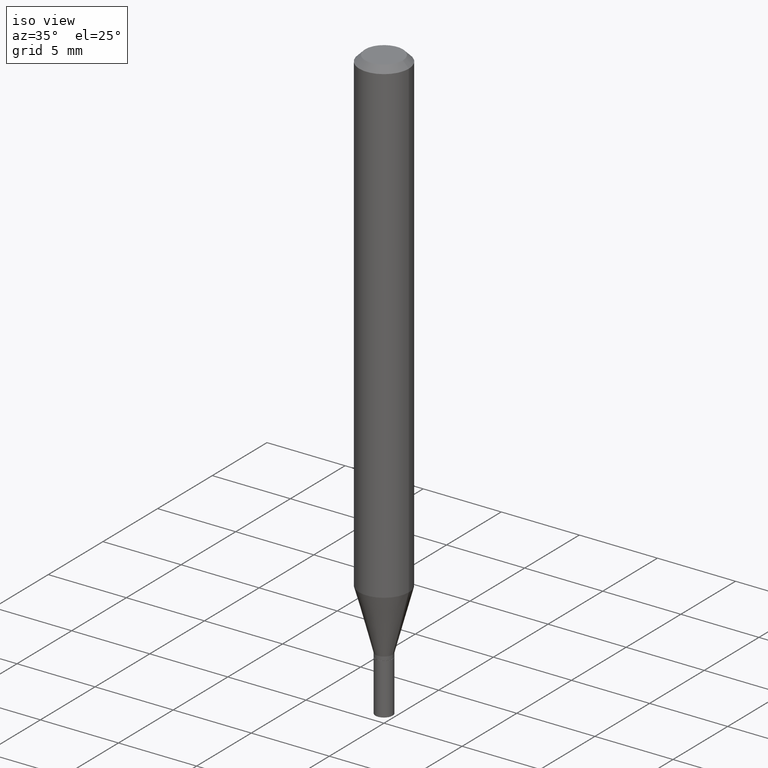
[diagram: clean part render]
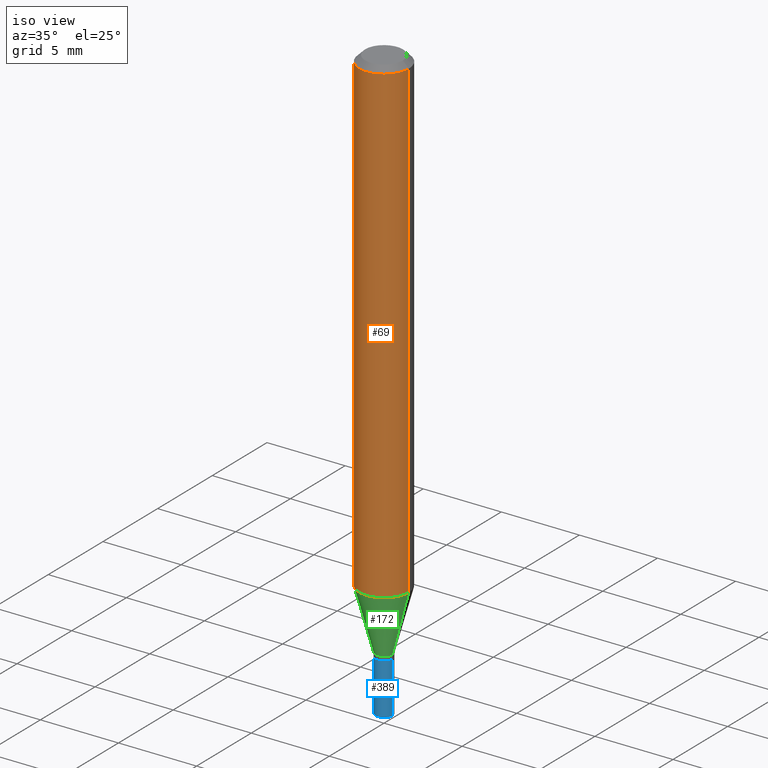
[diagram: same view with three faces highlighted in distinct colors, each labeled with its STEP entity id]
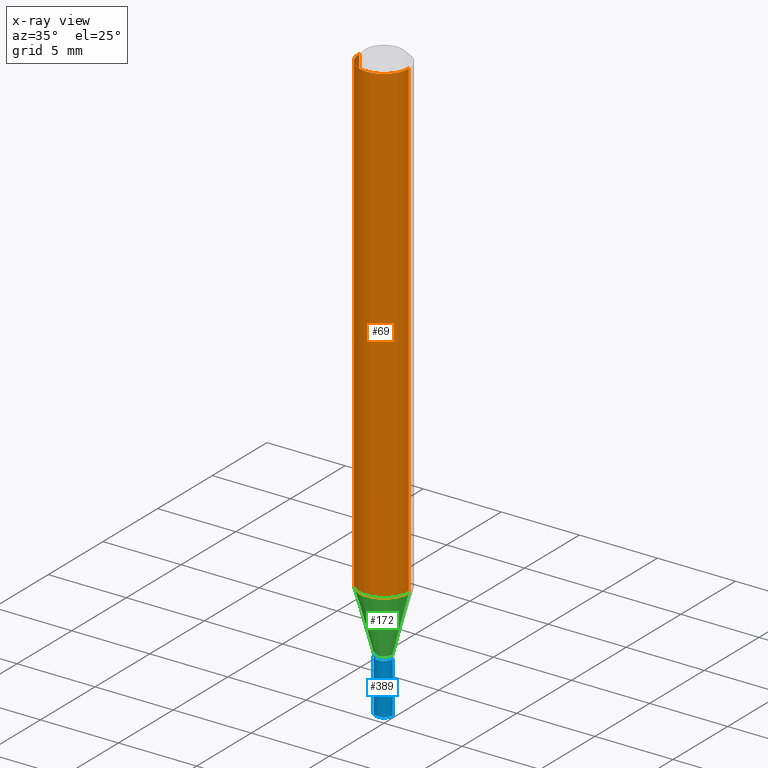
[diagram: x-ray of the same camera — body ghosted, the three highlighted faces saturated]
A machine part, iso view with three faces highlighted in distinct colors.
The next image is the same camera in x-ray (body ghosted, the three faces saturated) — at least one of them is partly hidden behind the body in this view.
Their STEP definitions:

[orange] entity #69 — the highlighted cylindrical surface (edge-blend (fillet) strip) has radius 1.5875 mm, axis along (-0, 0, 1).
#10 = ORIENTED_EDGE ( 'NONE', *, *, #109, .T. ) ;
#11 = CARTESIAN_POINT ( 'NONE',  ( 2.954091878064654281E-29, -4.217660286405631739E-15, -1.207985916889676270 ) ) ;
#23 = CARTESIAN_POINT ( 'NONE',  ( 0.06249999999999999306, -4.654095453761023408E-15, -1.207985916889676270 ) ) ;
#27 = VECTOR ( 'NONE', #318, 39.37007874015748143 ) ;
#40 = EDGE_LOOP ( 'NONE', ( #430, #10, #53, #263 ) ) ;
#53 = ORIENTED_EDGE ( 'NONE', *, *, #350, .T. ) ;
#58 = LINE ( 'NONE', #182, #27 ) ;
#66 = AXIS2_PLACEMENT_3D ( 'NONE', #278, #250, #417 ) ;
#69 = ADVANCED_FACE ( 'NONE', ( #422 ), #351, .T. ) ;
#74 = VERTEX_POINT ( 'NONE', #355 ) ;
#83 = VERTEX_POINT ( 'NONE', #147 ) ;
#93 = EDGE_CURVE ( 'NONE', #83, #74, #404, .T. ) ;
#109 = EDGE_CURVE ( 'NONE', #275, #323, #338, .T. ) ;
#111 = AXIS2_PLACEMENT_3D ( 'NONE', #452, #244, #210 ) ;
#146 = LINE ( 'NONE', #219, #435 ) ;
#147 = CARTESIAN_POINT ( 'NONE',  ( -0.06250000000000000000, -1.690927043394076990E-15, -0.01499999999999999944 ) ) ;
#161 = CARTESIAN_POINT ( 'NONE',  ( -0.06249999999999999306, -3.773571076555568334E-15, -1.207985916889676270 ) ) ;
#176 = EDGE_CURVE ( 'NONE', #275, #83, #58, .T. ) ;
#182 = CARTESIAN_POINT ( 'NONE',  ( -0.06250000000000000000, 4.440892098500626162E-16, -3.074334431409316114E-30 ) ) ;
#210 = DIRECTION ( 'NONE',  ( 1.000000000000000000, -6.982962677686266711E-15, 4.876176775795935793E-29 ) ) ;
#219 = CARTESIAN_POINT ( 'NONE',  ( 0.06250000000000000000, -4.364351673553916694E-16, 3.047610484872459871E-30 ) ) ;
#244 = DIRECTION ( 'NONE',  ( -2.445468806185136597E-29, 3.491481338843145583E-15, 1.000000000000000000 ) ) ;
#250 = DIRECTION ( 'NONE',  ( -2.445468806185136597E-29, 3.491481338843145583E-15, 1.000000000000000000 ) ) ;
#263 = ORIENTED_EDGE ( 'NONE', *, *, #93, .F. ) ;
#275 = VERTEX_POINT ( 'NONE', #161 ) ;
#278 = CARTESIAN_POINT ( 'NONE',  ( 3.668203209277705088E-31, -5.237222008264718399E-17, -0.01499999999999999944 ) ) ;
#318 = DIRECTION ( 'NONE',  ( -2.445468806185136877E-29, 3.491481338843145188E-15, 1.000000000000000000 ) ) ;
#323 = VERTEX_POINT ( 'NONE', #23 ) ;
#338 = CIRCLE ( 'NONE', #344, 0.06250000000000000000 ) ;
#340 = DIRECTION ( 'NONE',  ( 1.000000000000000000, -6.982962677686262766E-15, 0.000000000000000000 ) ) ;
#344 = AXIS2_PLACEMENT_3D ( 'NONE', #11, #407, #340 ) ;
#350 = EDGE_CURVE ( 'NONE', #323, #74, #146, .T. ) ;
#351 = CYLINDRICAL_SURFACE ( 'NONE', #111, 0.06250000000000000000 ) ;
#355 = CARTESIAN_POINT ( 'NONE',  ( 0.06250000000000000000, -4.888073874380388472E-16, -0.01499999999999999944 ) ) ;
#404 = CIRCLE ( 'NONE', #66, 0.06250000000000000000 ) ;
#407 = DIRECTION ( 'NONE',  ( -2.445468806185136597E-29, 3.491481338843145583E-15, 1.000000000000000000 ) ) ;
#417 = DIRECTION ( 'NONE',  ( 1.000000000000000000, -6.982962677686266711E-15, 0.000000000000000000 ) ) ;
#422 = FACE_OUTER_BOUND ( 'NONE', #40, .T. ) ;
#430 = ORIENTED_EDGE ( 'NONE', *, *, #176, .F. ) ;
#435 = VECTOR ( 'NONE', #464, 39.37007874015748143 ) ;
#452 = CARTESIAN_POINT ( 'NONE',  ( 0.000000000000000000, 0.000000000000000000, 0.000000000000000000 ) ) ;
#464 = DIRECTION ( 'NONE',  ( -2.445468806185136877E-29, 3.491481338843145188E-15, 1.000000000000000000 ) ) ;

[blue] entity #389 — the highlighted cylindrical surface (edge-blend (fillet) strip) has radius 0.5461 mm, axis along (-0, 0, 1).
#3 = FACE_OUTER_BOUND ( 'NONE', #194, .T. ) ;
#28 = VECTOR ( 'NONE', #306, 39.37007874015748143 ) ;
#29 = CARTESIAN_POINT ( 'NONE',  ( 0.02150000000000000175, -5.387355705834973006E-15, -1.500000000000000222 ) ) ;
#33 = ORIENTED_EDGE ( 'NONE', *, *, #46, .T. ) ;
#46 = EDGE_CURVE ( 'NONE', #75, #450, #421, .T. ) ;
#50 = LINE ( 'NONE', #242, #28 ) ;
#51 = VECTOR ( 'NONE', #386, 39.37007874015748143 ) ;
#56 = DIRECTION ( 'NONE',  ( -2.445468806185136597E-29, 3.491481338843145583E-15, 1.000000000000000000 ) ) ;
#75 = VERTEX_POINT ( 'NONE', #29 ) ;
#79 = CARTESIAN_POINT ( 'NONE',  ( 3.352737733279822651E-29, -4.786820915553953690E-15, -1.371000000000000218 ) ) ;
#124 = DIRECTION ( 'NONE',  ( 1.000000000000000000, -6.982962677686265922E-15, 4.876176775795935232E-29 ) ) ;
#134 = AXIS2_PLACEMENT_3D ( 'NONE', #79, #292, #436 ) ;
#142 = CIRCLE ( 'NONE', #396, 0.02150000000000000175 ) ;
#193 = CARTESIAN_POINT ( 'NONE',  ( -0.02150000000000000175, -4.859254773720913469E-15, -1.500000000000000222 ) ) ;
#194 = EDGE_LOOP ( 'NONE', ( #385, #294, #33, #455 ) ) ;
#205 = CARTESIAN_POINT ( 'NONE',  ( 0.02150000000000000175, -1.501336975702547303E-16, 1.048378006796126202E-30 ) ) ;
#222 = CARTESIAN_POINT ( 'NONE',  ( -0.02150000000000000175, -4.859254773720913469E-15, -1.371000000000000218 ) ) ;
#242 = CARTESIAN_POINT ( 'NONE',  ( -0.02150000000000000175, 1.527666881884215524E-16, -1.057571044404804700E-30 ) ) ;
#252 = AXIS2_PLACEMENT_3D ( 'NONE', #257, #405, #124 ) ;
#257 = CARTESIAN_POINT ( 'NONE',  ( 0.000000000000000000, 0.000000000000000000, 0.000000000000000000 ) ) ;
#280 = CIRCLE ( 'NONE', #134, 0.02150000000000000175 ) ;
#287 = CYLINDRICAL_SURFACE ( 'NONE', #252, 0.02150000000000000175 ) ;
#292 = DIRECTION ( 'NONE',  ( -2.445468806185136597E-29, 3.491481338843145583E-15, 1.000000000000000000 ) ) ;
#294 = ORIENTED_EDGE ( 'NONE', *, *, #412, .T. ) ;
#306 = DIRECTION ( 'NONE',  ( -2.445468806185136877E-29, 3.491481338843145188E-15, 1.000000000000000000 ) ) ;
#309 = CARTESIAN_POINT ( 'NONE',  ( 0.02150000000000000175, -4.936954613124208519E-15, -1.371000000000000218 ) ) ;
#322 = EDGE_CURVE ( 'NONE', #382, #365, #50, .T. ) ;
#354 = EDGE_CURVE ( 'NONE', #365, #450, #280, .T. ) ;
#365 = VERTEX_POINT ( 'NONE', #222 ) ;
#377 = CARTESIAN_POINT ( 'NONE',  ( 3.668203209277704895E-29, -5.237222008264718177E-15, -1.500000000000000222 ) ) ;
#382 = VERTEX_POINT ( 'NONE', #193 ) ;
#385 = ORIENTED_EDGE ( 'NONE', *, *, #322, .F. ) ;
#386 = DIRECTION ( 'NONE',  ( -2.445468806185136877E-29, 3.491481338843145188E-15, 1.000000000000000000 ) ) ;
#389 = ADVANCED_FACE ( 'NONE', ( #3 ), #287, .T. ) ;
#396 = AXIS2_PLACEMENT_3D ( 'NONE', #377, #56, #414 ) ;
#405 = DIRECTION ( 'NONE',  ( -2.445468806185136597E-29, 3.491481338843145583E-15, 1.000000000000000000 ) ) ;
#412 = EDGE_CURVE ( 'NONE', #382, #75, #142, .T. ) ;
#414 = DIRECTION ( 'NONE',  ( 1.000000000000000000, -6.982962677686265133E-15, 0.000000000000000000 ) ) ;
#421 = LINE ( 'NONE', #205, #51 ) ;
#436 = DIRECTION ( 'NONE',  ( 1.000000000000000000, -6.982962677686265133E-15, 0.000000000000000000 ) ) ;
#450 = VERTEX_POINT ( 'NONE', #309 ) ;
#455 = ORIENTED_EDGE ( 'NONE', *, *, #354, .F. ) ;

[green] entity #172 — the highlighted conical surface has half-angle 15 deg.
#11 = CARTESIAN_POINT ( 'NONE',  ( 2.954091878064654281E-29, -4.217660286405631739E-15, -1.207985916889676270 ) ) ;
#21 = LINE ( 'NONE', #295, #141 ) ;
#23 = CARTESIAN_POINT ( 'NONE',  ( 0.06249999999999999306, -4.654095453761023408E-15, -1.207985916889676270 ) ) ;
#49 = VERTEX_POINT ( 'NONE', #427 ) ;
#63 = FACE_OUTER_BOUND ( 'NONE', #248, .T. ) ;
#67 = ORIENTED_EDGE ( 'NONE', *, *, #104, .T. ) ;
#98 = VECTOR ( 'NONE', #100, 39.37007874015747433 ) ;
#100 = DIRECTION ( 'NONE',  ( -0.2588190451025214611, 5.211531920934551042E-15, 0.9659258262890682012 ) ) ;
#104 = EDGE_CURVE ( 'NONE', #282, #49, #370, .T. ) ;
#109 = EDGE_CURVE ( 'NONE', #275, #323, #338, .T. ) ;
#140 = DIRECTION ( 'NONE',  ( 0.2588190451025214611, 1.565188264969621573E-15, 0.9659258262890682012 ) ) ;
#141 = VECTOR ( 'NONE', #140, 39.37007874015747433 ) ;
#161 = CARTESIAN_POINT ( 'NONE',  ( -0.06249999999999999306, -3.773571076555568334E-15, -1.207985916889676270 ) ) ;
#172 = ADVANCED_FACE ( 'NONE', ( #63 ), #374, .T. ) ;
#196 = AXIS2_PLACEMENT_3D ( 'NONE', #237, #384, #335 ) ;
#237 = CARTESIAN_POINT ( 'NONE',  ( 3.328283045217970545E-29, -4.751906102165520463E-15, -1.360999999999999988 ) ) ;
#248 = EDGE_LOOP ( 'NONE', ( #326, #67, #272, #461 ) ) ;
#271 = CARTESIAN_POINT ( 'NONE',  ( -0.02149999999999992889, -4.599139413977099971E-15, -1.360999999999999988 ) ) ;
#272 = ORIENTED_EDGE ( 'NONE', *, *, #290, .T. ) ;
#273 = LINE ( 'NONE', #271, #98 ) ;
#275 = VERTEX_POINT ( 'NONE', #161 ) ;
#282 = VERTEX_POINT ( 'NONE', #372 ) ;
#290 = EDGE_CURVE ( 'NONE', #49, #323, #21, .T. ) ;
#295 = CARTESIAN_POINT ( 'NONE',  ( 0.02149999999999992889, -4.902039799735775292E-15, -1.360999999999999988 ) ) ;
#314 = CARTESIAN_POINT ( 'NONE',  ( 3.328283045217970545E-29, -4.751906102165520463E-15, -1.360999999999999988 ) ) ;
#323 = VERTEX_POINT ( 'NONE', #23 ) ;
#326 = ORIENTED_EDGE ( 'NONE', *, *, #457, .F. ) ;
#335 = DIRECTION ( 'NONE',  ( 1.000000000000000000, -6.982962677686288799E-15, 0.000000000000000000 ) ) ;
#338 = CIRCLE ( 'NONE', #344, 0.06250000000000000000 ) ;
#340 = DIRECTION ( 'NONE',  ( 1.000000000000000000, -6.982962677686262766E-15, 0.000000000000000000 ) ) ;
#344 = AXIS2_PLACEMENT_3D ( 'NONE', #11, #407, #340 ) ;
#370 = CIRCLE ( 'NONE', #196, 0.02149999999999992889 ) ;
#372 = CARTESIAN_POINT ( 'NONE',  ( -0.02149999999999992889, -4.186355245266334152E-15, -1.360999999999999988 ) ) ;
#374 = CONICAL_SURFACE ( 'NONE', #395, 0.02149999999999992889, 0.2617993877991501295 ) ;
#384 = DIRECTION ( 'NONE',  ( -2.445468806185136597E-29, 3.491481338843145583E-15, 1.000000000000000000 ) ) ;
#393 = DIRECTION ( 'NONE',  ( 1.000000000000000000, -6.982962677686288799E-15, 0.000000000000000000 ) ) ;
#395 = AXIS2_PLACEMENT_3D ( 'NONE', #314, #454, #393 ) ;
#407 = DIRECTION ( 'NONE',  ( -2.445468806185136597E-29, 3.491481338843145583E-15, 1.000000000000000000 ) ) ;
#427 = CARTESIAN_POINT ( 'NONE',  ( 0.02149999999999992889, -4.902039799735775292E-15, -1.360999999999999988 ) ) ;
#454 = DIRECTION ( 'NONE',  ( -2.445468806185136597E-29, 3.491481338843145583E-15, 1.000000000000000000 ) ) ;
#457 = EDGE_CURVE ( 'NONE', #282, #275, #273, .T. ) ;
#461 = ORIENTED_EDGE ( 'NONE', *, *, #109, .F. ) ;